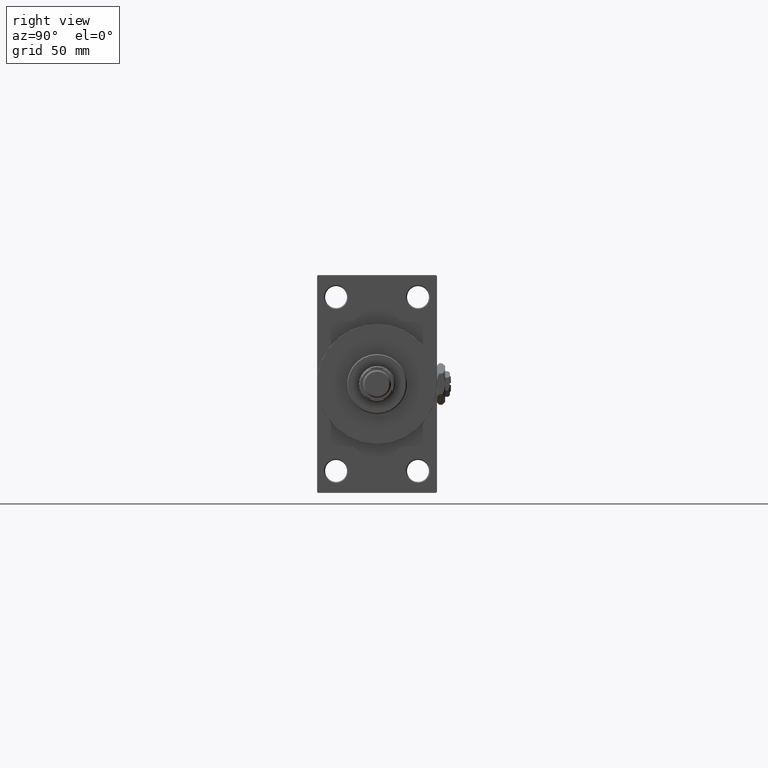
[diagram: clean part render]
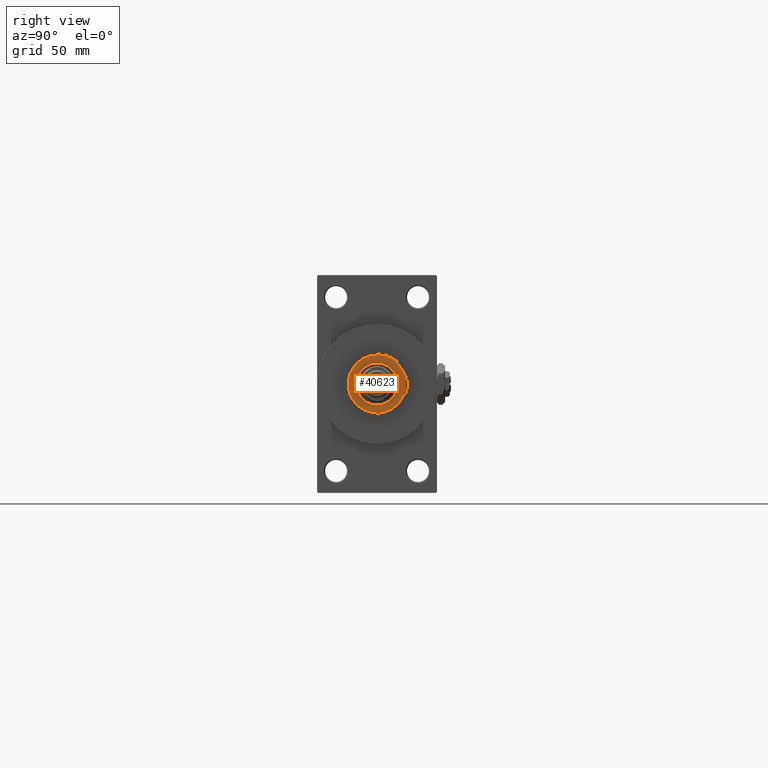
[diagram: same view with one face highlighted and labeled with its STEP entity id]
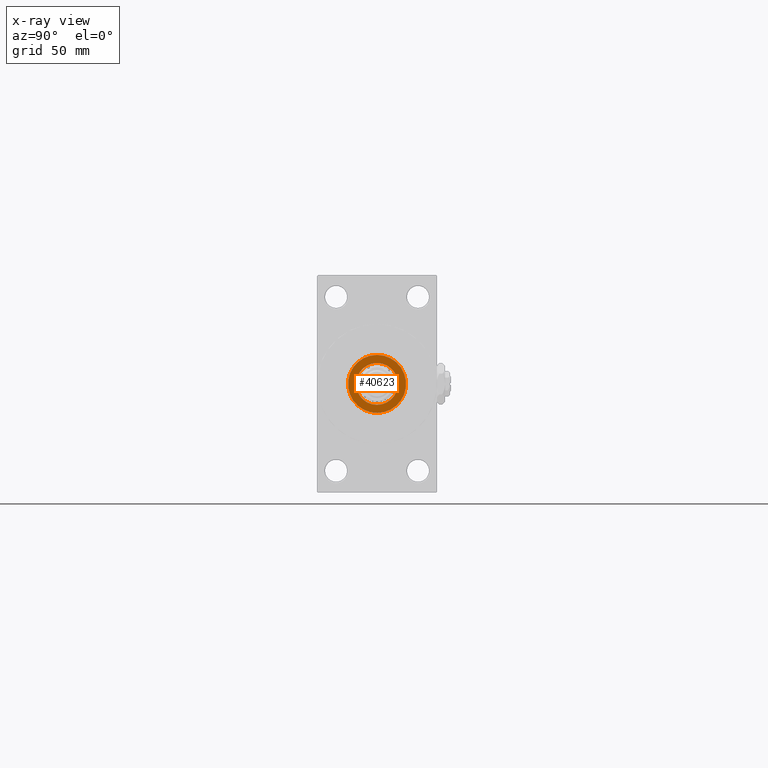
[diagram: x-ray of the same camera — body ghosted, the highlighted face saturated]
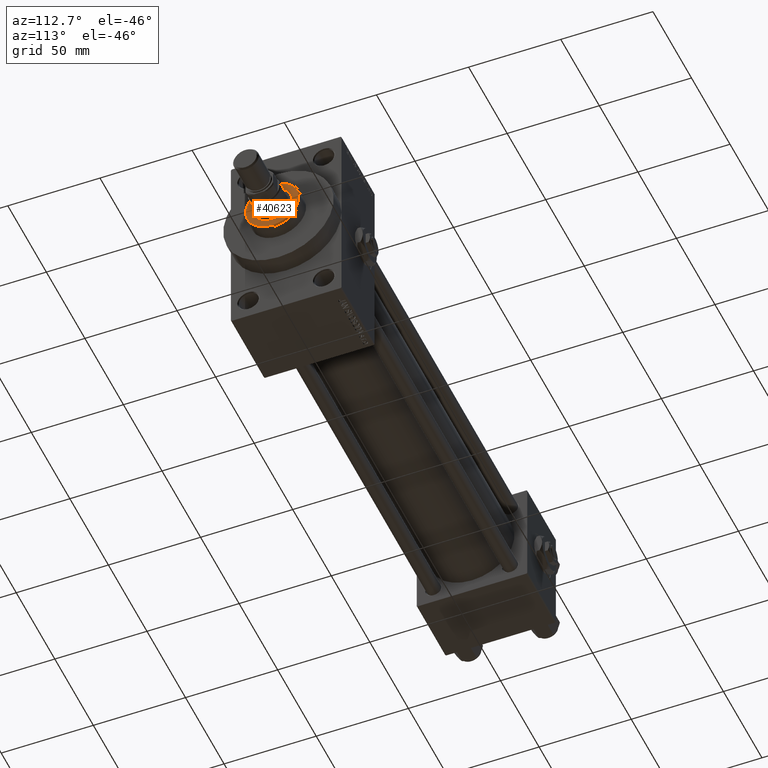
[diagram: same view with one face highlighted and labeled with its STEP entity id]
A machine part, right view. The second image highlights one B-rep face of the part: STEP entity #40623.
The next image is the same camera in x-ray: the body ghosted, the highlighted face saturated — about 0% of this face is hidden behind the body in this view.
A second angle (auxiliary view) of the same face is appended — the face is thin or edge-on in the first view.
In plain terms, the highlighted planar face has unit normal (1, -0, -0).
Its self-contained STEP definition (entity closure, byte-faithful):
#670 = CARTESIAN_POINT ( 'NONE',  ( 14.49999999999999112, 1.806354028742345013E-15, 51.25999999999999801 ) ) ;
#1351 = CARTESIAN_POINT ( 'NONE',  ( 10.50000000000000000, 0.000000000000000000, 51.25999999999999801 ) ) ;
#2467 = ORIENTED_EDGE ( 'NONE', *, *, #3541, .T. ) ;
#3048 = CARTESIAN_POINT ( 'NONE',  ( -10.50000000000000000, 1.285879139104720831E-15, 51.25999999999999801 ) ) ;
#3541 = EDGE_CURVE ( 'NONE', #24240, #16111, #42663, .T. ) ;
#5503 = CARTESIAN_POINT ( 'NONE',  ( 0.000000000000000000, 0.000000000000000000, 51.25999999999999801 ) ) ;
#5554 = DIRECTION ( 'NONE',  ( 0.000000000000000000, 0.000000000000000000, 1.000000000000000000 ) ) ;
#6026 = AXIS2_PLACEMENT_3D ( 'NONE', #17112, #21647, #32494 ) ;
#10581 = EDGE_LOOP ( 'NONE', ( #19636, #43458 ) ) ;
#12896 = EDGE_CURVE ( 'NONE', #16111, #24240, #36472, .T. ) ;
#13715 = AXIS2_PLACEMENT_3D ( 'NONE', #23943, #5554, #35526 ) ;
#15182 = CARTESIAN_POINT ( 'NONE',  ( 0.000000000000000000, 0.000000000000000000, 51.25999999999999801 ) ) ;
#16111 = VERTEX_POINT ( 'NONE', #670 ) ;
#17112 = CARTESIAN_POINT ( 'NONE',  ( 0.000000000000000000, 0.000000000000000000, 51.25999999999999801 ) ) ;
#17272 = VERTEX_POINT ( 'NONE', #1351 ) ;
#19007 = EDGE_LOOP ( 'NONE', ( #2467, #49164 ) ) ;
#19636 = ORIENTED_EDGE ( 'NONE', *, *, #38018, .F. ) ;
#21647 = DIRECTION ( 'NONE',  ( 0.000000000000000000, 0.000000000000000000, 1.000000000000000000 ) ) ;
#23943 = CARTESIAN_POINT ( 'NONE',  ( 0.000000000000000000, 0.000000000000000000, 51.25999999999999801 ) ) ;
#24240 = VERTEX_POINT ( 'NONE', #32762 ) ;
#24857 = DIRECTION ( 'NONE',  ( 1.000000000000000000, 0.000000000000000000, 0.000000000000000000 ) ) ;
#26763 = DIRECTION ( 'NONE',  ( 1.000000000000000000, 0.000000000000000000, -0.000000000000000000 ) ) ;
#27247 = AXIS2_PLACEMENT_3D ( 'NONE', #5503, #40224, #24857 ) ;
#27719 = CIRCLE ( 'NONE', #6026, 10.50000000000000000 ) ;
#27761 = PLANE ( 'NONE',  #44289 ) ;
#29850 = DIRECTION ( 'NONE',  ( 1.000000000000000000, 0.000000000000000000, 0.000000000000000000 ) ) ;
#30381 = CIRCLE ( 'NONE', #44030, 10.50000000000000000 ) ;
#32494 = DIRECTION ( 'NONE',  ( 1.000000000000000000, 0.000000000000000000, 0.000000000000000000 ) ) ;
#32762 = CARTESIAN_POINT ( 'NONE',  ( -14.49999999999999112, 0.000000000000000000, 51.25999999999999801 ) ) ;
#35317 = FACE_OUTER_BOUND ( 'NONE', #19007, .T. ) ;
#35526 = DIRECTION ( 'NONE',  ( 1.000000000000000000, 0.000000000000000000, 0.000000000000000000 ) ) ;
#36472 = CIRCLE ( 'NONE', #27247, 14.49999999999999112 ) ;
#37146 = DIRECTION ( 'NONE',  ( 0.000000000000000000, 0.000000000000000000, 1.000000000000000000 ) ) ;
#37538 = VERTEX_POINT ( 'NONE', #3048 ) ;
#38018 = EDGE_CURVE ( 'NONE', #17272, #37538, #30381, .T. ) ;
#38592 = FACE_BOUND ( 'NONE', #10581, .T. ) ;
#40224 = DIRECTION ( 'NONE',  ( 0.000000000000000000, 0.000000000000000000, 1.000000000000000000 ) ) ;
#40623 = ADVANCED_FACE ( 'NONE', ( #38592, #35317 ), #27761, .T. ) ;
#42663 = CIRCLE ( 'NONE', #13715, 14.49999999999999112 ) ;
#43458 = ORIENTED_EDGE ( 'NONE', *, *, #49764, .F. ) ;
#44030 = AXIS2_PLACEMENT_3D ( 'NONE', #44970, #37146, #29850 ) ;
#44289 = AXIS2_PLACEMENT_3D ( 'NONE', #15182, #46406, #26763 ) ;
#44970 = CARTESIAN_POINT ( 'NONE',  ( 0.000000000000000000, 0.000000000000000000, 51.25999999999999801 ) ) ;
#46406 = DIRECTION ( 'NONE',  ( 0.000000000000000000, 0.000000000000000000, 1.000000000000000000 ) ) ;
#49164 = ORIENTED_EDGE ( 'NONE', *, *, #12896, .T. ) ;
#49764 = EDGE_CURVE ( 'NONE', #37538, #17272, #27719, .T. ) ;